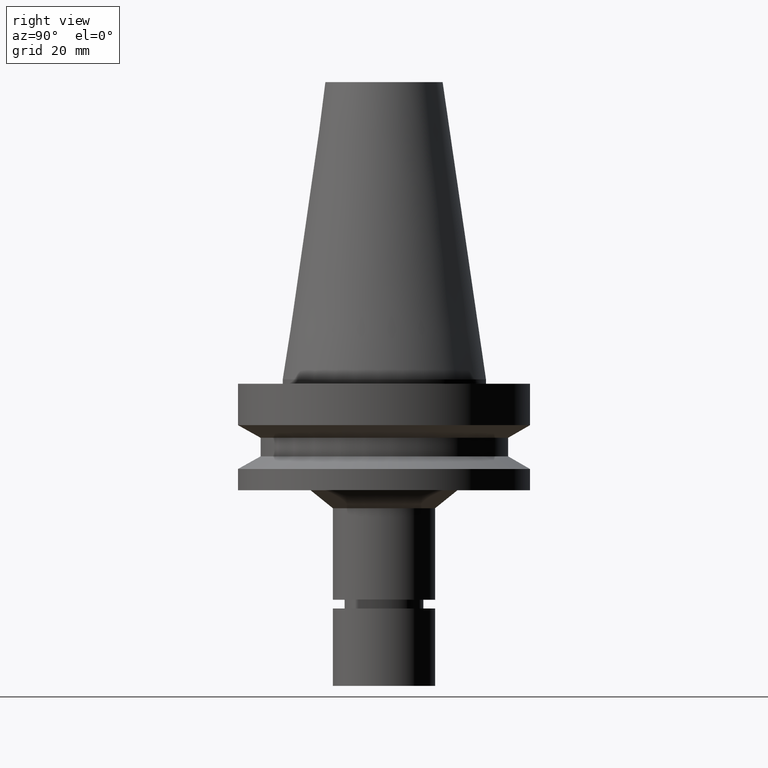
[diagram: clean part render]
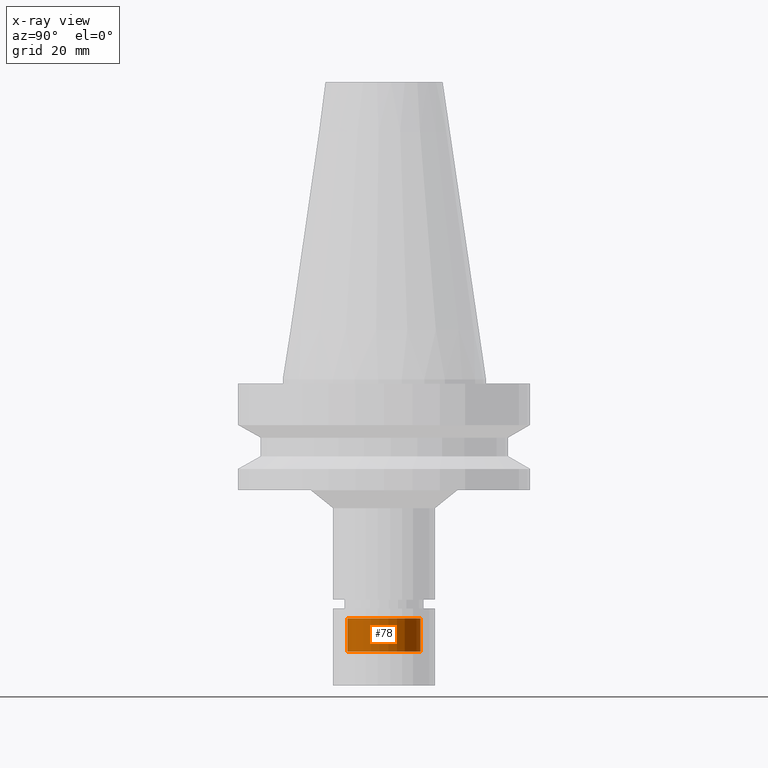
[diagram: x-ray — body ghosted, one internal face saturated and labeled with its STEP entity id]
A machine part, right view, then the same camera in x-ray: the body is ghosted and one INTERNAL B-rep face — a face not visible from any outside direction — is saturated and labeled: STEP entity #78.
In plain terms, the highlighted cylindrical surface (bore or boss wall) has radius 12.5 mm, axis along (-0, 0, 1).
Its self-contained STEP definition (entity closure, byte-faithful):
#78=ADVANCED_FACE('Unnamed[1]',(#205,#206),#207,.T.);
#138=EDGE_CURVE('Unnamed[1]',#298,#298,#299,.T.);
#147=EDGE_CURVE('Unnamed[1]',#312,#312,#313,.T.);
#205=FACE_BOUND('',#382,.T.);
#206=FACE_BOUND('',#383,.T.);
#207=CYLINDRICAL_SURFACE('',#384,12.4999999999999);
#298=VERTEX_POINT('',#498);
#299=CIRCLE('',#499,12.4999999999998);
#312=VERTEX_POINT('',#516);
#313=CIRCLE('',#517,12.4999999999999);
#382=EDGE_LOOP('',(#584));
#383=EDGE_LOOP('',(#585));
#384=AXIS2_PLACEMENT_3D('',#586,#587,#588);
#498=CARTESIAN_POINT('',(5.71265548768155E-015,12.4999999999998,-93.2947441116725));
#499=AXIS2_PLACEMENT_3D('',#687,#688,#689);
#516=CARTESIAN_POINT('',(5.01490875023964E-015,12.4999999999999,-81.8996751345975));
#517=AXIS2_PLACEMENT_3D('',#702,#703,#704);
#584=ORIENTED_EDGE('',*,*,#147,.F.);
#585=ORIENTED_EDGE('',*,*,#138,.T.);
#586=CARTESIAN_POINT('',(5.3637821189606E-015,1.29838450504104E-014,-87.597209623135));
#587=DIRECTION('',(-6.12323399573677E-017,1.406840699171E-019,1.0));
#588=DIRECTION('',(-4.81853831597527E-033,1.0,-1.406840699171E-019));
#687=CARTESIAN_POINT('',(5.71265548768155E-015,1.29830434980699E-014,-93.2947441116725));
#688=DIRECTION('',(-6.12323399573677E-017,1.40684069917101E-019,1.0));
#689=DIRECTION('',(-4.81853831597529E-033,1.0,-1.40684069917101E-019));
#702=CARTESIAN_POINT('',(5.01490875023964E-015,1.29846466027508E-014,-81.8996751345975));
#703=DIRECTION('',(-6.12323399573677E-017,1.40684069917099E-019,1.0));
#704=DIRECTION('',(-4.81853831597525E-033,1.0,-1.40684069917099E-019));